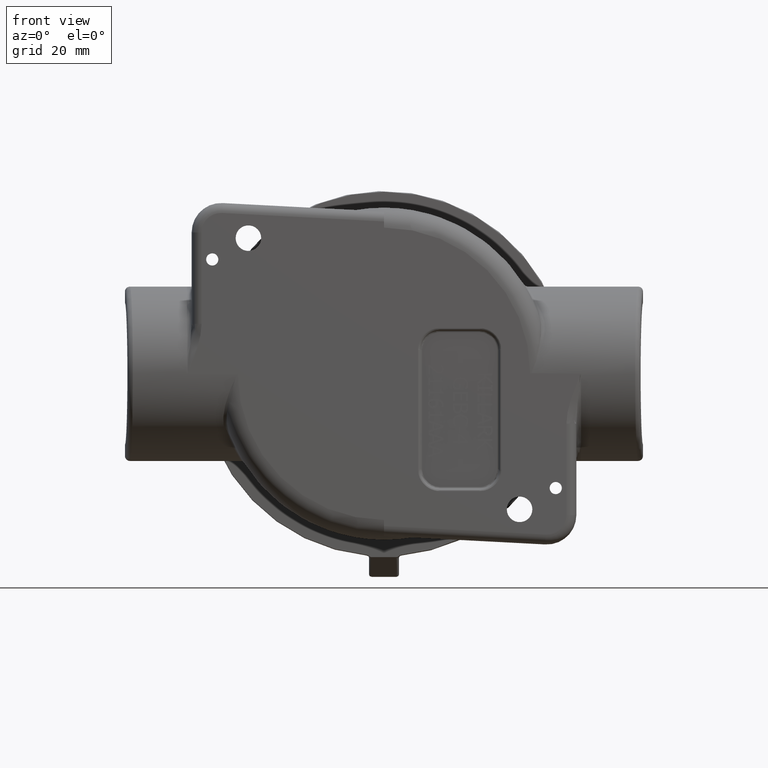
[diagram: clean part render]
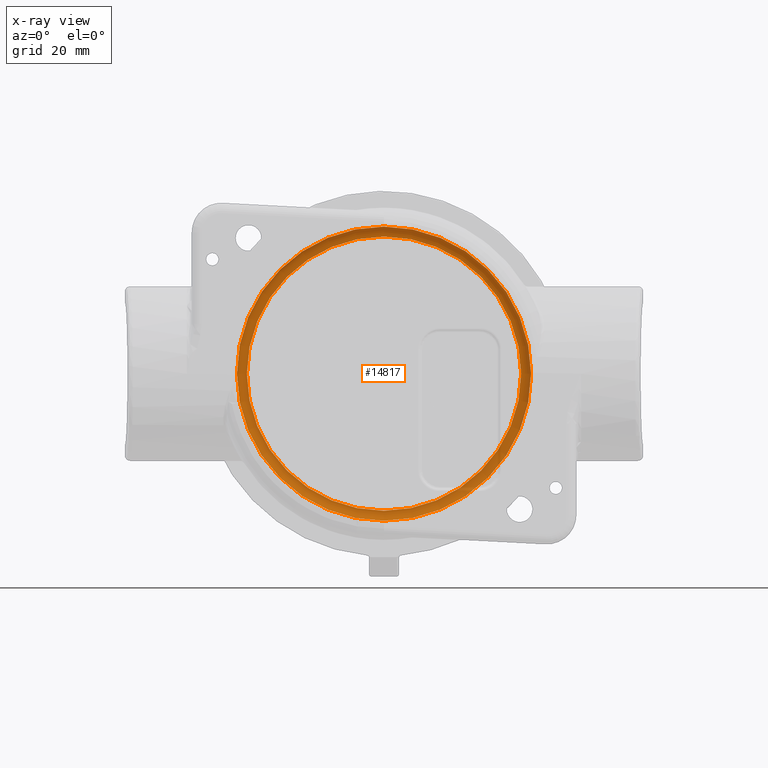
[diagram: x-ray — body ghosted, one internal face saturated and labeled with its STEP entity id]
A machine part, front view, then the same camera in x-ray: the body is ghosted and one INTERNAL B-rep face — a face not visible from any outside direction — is saturated and labeled: STEP entity #14817.
In plain terms, the highlighted toroidal blend (fillet) surface has major radius 43.7053 mm and minor (blend) radius 3.175 mm.
Its self-contained STEP definition (entity closure, byte-faithful):
#3253=TOROIDAL_SURFACE('',#15851,1.72067945491223,0.125);
#4086=FACE_OUTER_BOUND('',#4982,.T.);
#4982=EDGE_LOOP('',(#13726,#13727,#13728,#13729,#13730,#13731));
#5841=CIRCLE('',#15849,1.72067945491223);
#5842=CIRCLE('',#15850,1.72067945491223);
#5843=CIRCLE('',#15852,1.84566802003422);
#5844=CIRCLE('',#15853,1.84566802003422);
#5845=CIRCLE('',#15854,0.125);
#7229=VERTEX_POINT('',#53763);
#7230=VERTEX_POINT('',#53764);
#7231=VERTEX_POINT('',#53768);
#7232=VERTEX_POINT('',#53769);
#9396=EDGE_CURVE('',#7229,#7230,#5841,.F.);
#9397=EDGE_CURVE('',#7230,#7229,#5842,.F.);
#9398=EDGE_CURVE('',#7231,#7232,#5843,.T.);
#9399=EDGE_CURVE('',#7232,#7231,#5844,.T.);
#9400=EDGE_CURVE('',#7232,#7230,#5845,.T.);
#13726=ORIENTED_EDGE('',*,*,#9398,.F.);
#13727=ORIENTED_EDGE('',*,*,#9399,.F.);
#13728=ORIENTED_EDGE('',*,*,#9400,.T.);
#13729=ORIENTED_EDGE('',*,*,#9396,.F.);
#13730=ORIENTED_EDGE('',*,*,#9397,.F.);
#13731=ORIENTED_EDGE('',*,*,#9400,.F.);
#14817=ADVANCED_FACE('',(#4086),#3253,.F.);
#15849=AXIS2_PLACEMENT_3D('',#53765,#19052,#19053);
#15850=AXIS2_PLACEMENT_3D('',#53766,#19054,#19055);
#15851=AXIS2_PLACEMENT_3D('',#53767,#19056,#19057);
#15852=AXIS2_PLACEMENT_3D('',#53770,#19058,#19059);
#15853=AXIS2_PLACEMENT_3D('',#53771,#19060,#19061);
#15854=AXIS2_PLACEMENT_3D('',#53772,#19062,#19063);
#19052=DIRECTION('center_axis',(0.,0.,1.));
#19053=DIRECTION('ref_axis',(1.,0.,0.));
#19054=DIRECTION('center_axis',(0.,0.,1.));
#19055=DIRECTION('ref_axis',(1.,0.,0.));
#19056=DIRECTION('center_axis',(0.,0.,1.));
#19057=DIRECTION('ref_axis',(1.,0.,0.));
#19058=DIRECTION('center_axis',(0.,0.,1.));
#19059=DIRECTION('ref_axis',(1.,0.,0.));
#19060=DIRECTION('center_axis',(0.,0.,1.));
#19061=DIRECTION('ref_axis',(1.,0.,0.));
#19062=DIRECTION('center_axis',(-1.22464679914735E-16,1.,0.));
#19063=DIRECTION('ref_axis',(-1.,-1.22464679914735E-16,0.));
#53763=CARTESIAN_POINT('',(1.72067945491223,0.,1.03125));
#53764=CARTESIAN_POINT('',(-1.72067945491223,-2.10722458681688E-16,1.03125));
#53765=CARTESIAN_POINT('Origin',(0.,0.,1.03125));
#53766=CARTESIAN_POINT('Origin',(0.,0.,1.03125));
#53767=CARTESIAN_POINT('Origin',(0.,0.,0.90625));
#53768=CARTESIAN_POINT('',(1.84566802003422,0.,0.907940736155361));
#53769=CARTESIAN_POINT('',(-1.84566802003422,-2.26029143302354E-16,0.907940736155361));
#53770=CARTESIAN_POINT('Origin',(0.,0.,0.907940736155361));
#53771=CARTESIAN_POINT('Origin',(0.,0.,0.907940736155361));
#53772=CARTESIAN_POINT('Origin',(-1.72067945491223,-2.10722458681688E-16,
0.90625));